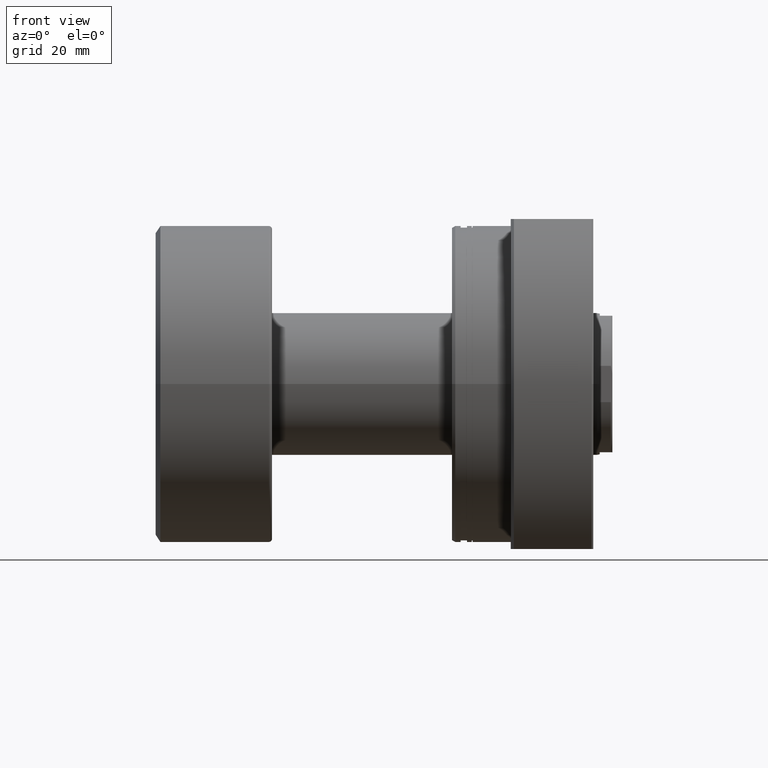
[diagram: clean part render]
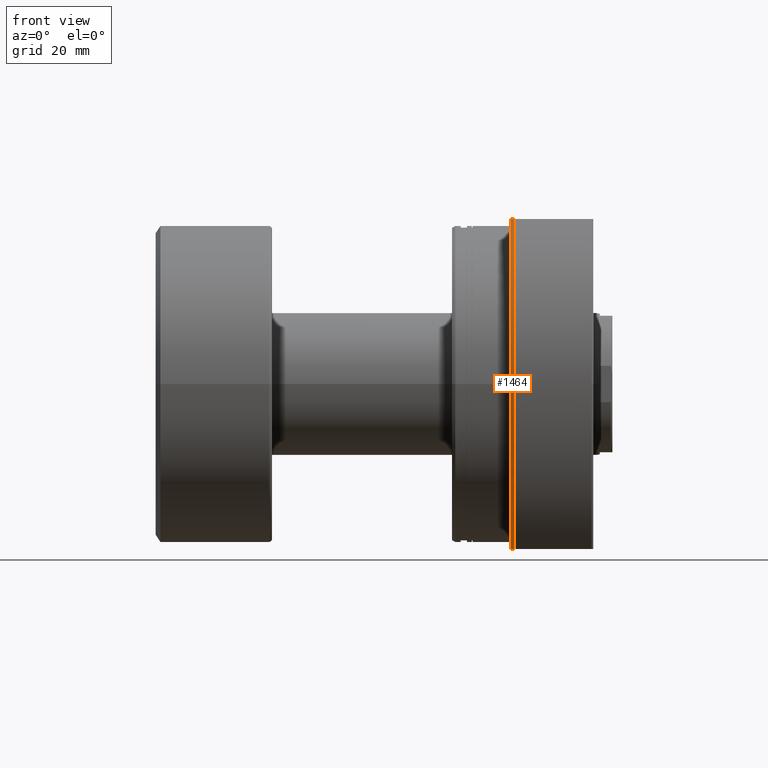
[diagram: same view with one face highlighted and labeled with its STEP entity id]
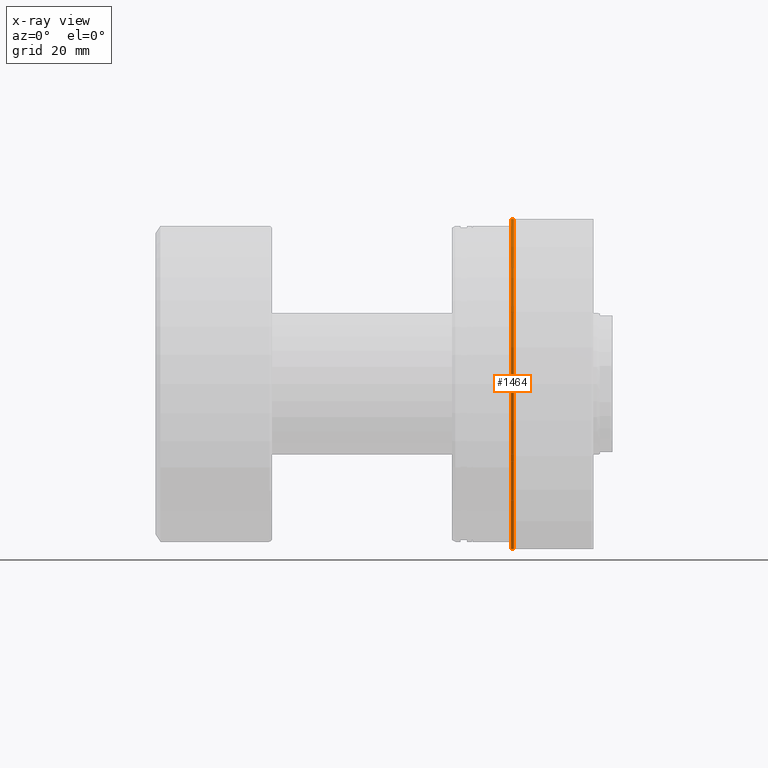
[diagram: x-ray of the same camera — body ghosted, the highlighted face saturated]
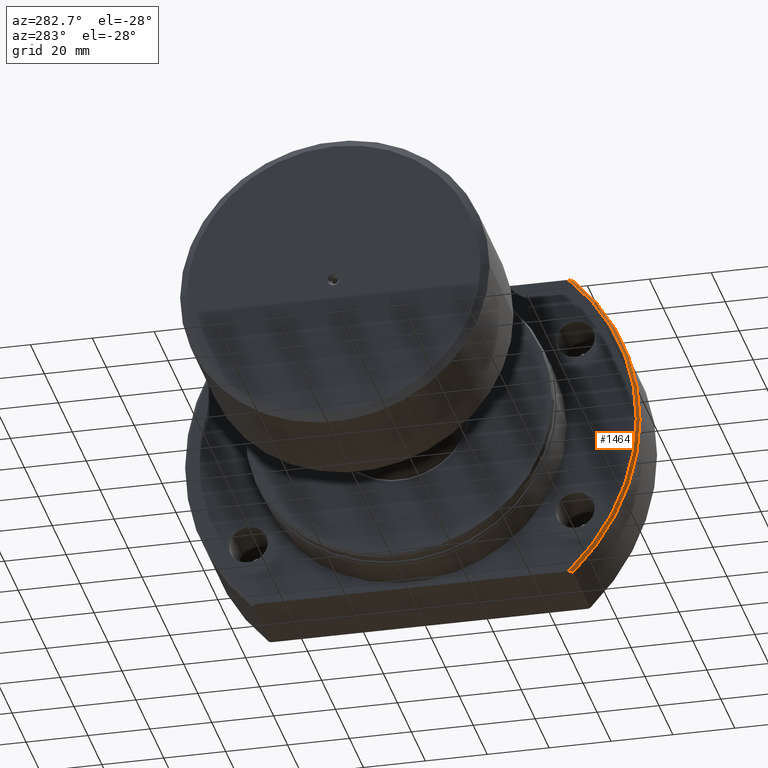
[diagram: same view with one face highlighted and labeled with its STEP entity id]
A machine part, front view. The second image highlights one B-rep face of the part: STEP entity #1464.
The next image is the same camera in x-ray: the body ghosted, the highlighted face saturated — about 0% of this face is hidden behind the body in this view.
A second angle (auxiliary view) of the same face is appended — the face is thin or edge-on in the first view.
In plain terms, the highlighted conical surface has half-angle 45 deg.
Its self-contained STEP definition (entity closure, byte-faithful):
#2 = CIRCLE ( 'NONE', #1892, 72.49999999999992895 ) ;
#79 = ORIENTED_EDGE ( 'NONE', *, *, #2573, .F. ) ;
#96 = DIRECTION ( 'NONE',  ( -4.785444071660162135E-17, 1.000000000000000000, 0.000000000000000000 ) ) ;
#130 = CARTESIAN_POINT ( 'NONE',  ( 18.50000000000000711, 1.018245653223641951E-15, 0.000000000000000000 ) ) ;
#227 = B_SPLINE_CURVE_WITH_KNOTS ( 'NONE', 3,
 ( #1865, #2126, #1849, #607 ),
 .UNSPECIFIED., .F., .F.,
 ( 4, 4 ),
 ( 0.1939618309439029020, 0.1957182682511685867 ),
 .UNSPECIFIED. ) ;
#277 = DIRECTION ( 'NONE',  ( -4.720335989052541552E-17, 1.000000000000000000, 0.000000000000000000 ) ) ;
#278 = CARTESIAN_POINT ( 'NONE',  ( 19.49999999999999289, -51.94468211472581487, 52.00000000000000000 ) ) ;
#290 = B_SPLINE_CURVE_WITH_KNOTS ( 'NONE', 3,
 ( #1639, #1222, #420, #1179 ),
 .UNSPECIFIED., .F., .F.,
 ( 4, 4 ),
 ( 0.1939618309439028465, 0.1957182682511685312 ),
 .UNSPECIFIED. ) ;
#420 = CARTESIAN_POINT ( 'NONE',  ( 19.16504727819932796, -51.47073513786417465, 52.00000000000000000 ) ) ;
#585 = ORIENTED_EDGE ( 'NONE', *, *, #667, .F. ) ;
#607 = CARTESIAN_POINT ( 'NONE',  ( 19.49999999999999289, -51.94468211472582198, -51.99999999999999289 ) ) ;
#667 = EDGE_CURVE ( 'NONE', #2685, #2253, #2000, .T. ) ;
#780 = EDGE_CURVE ( 'NONE', #2483, #1108, #2, .T. ) ;
#894 = DIRECTION ( 'NONE',  ( 1.000000000000000000, 5.504030557965630938E-17, -0.000000000000000000 ) ) ;
#1108 = VERTEX_POINT ( 'NONE', #2324 ) ;
#1110 = DIRECTION ( 'NONE',  ( 1.000000000000000000, 5.504030557965630938E-17, -0.000000000000000000 ) ) ;
#1111 = CARTESIAN_POINT ( 'NONE',  ( 18.50000000000000711, -50.51979809935892263, 52.00000000000000000 ) ) ;
#1179 = CARTESIAN_POINT ( 'NONE',  ( 19.49999999999999289, -51.94468211472581487, 52.00000000000000000 ) ) ;
#1222 = CARTESIAN_POINT ( 'NONE',  ( 18.83168451724293746, -50.99579223244746373, 52.00000000000000000 ) ) ;
#1292 = ORIENTED_EDGE ( 'NONE', *, *, #780, .T. ) ;
#1335 = DIRECTION ( 'NONE',  ( 1.000000000000000000, 5.504030557965630938E-17, -0.000000000000000000 ) ) ;
#1464 = ADVANCED_FACE ( 'NONE', ( #2351 ), #2278, .T. ) ;
#1525 = EDGE_CURVE ( 'NONE', #1108, #2253, #227, .T. ) ;
#1579 = AXIS2_PLACEMENT_3D ( 'NONE', #2812, #1110, #277 ) ;
#1591 = EDGE_LOOP ( 'NONE', ( #79, #1292, #2413, #585 ) ) ;
#1636 = AXIS2_PLACEMENT_3D ( 'NONE', #130, #894, #96 ) ;
#1639 = CARTESIAN_POINT ( 'NONE',  ( 18.50000000000000711, -50.51979809935892263, 52.00000000000000000 ) ) ;
#1849 = CARTESIAN_POINT ( 'NONE',  ( 19.16504727819932796, -51.47073513786417465, -52.00000000000000000 ) ) ;
#1865 = CARTESIAN_POINT ( 'NONE',  ( 18.50000000000000711, -50.51979809935892263, -52.00000000000000000 ) ) ;
#1892 = AXIS2_PLACEMENT_3D ( 'NONE', #2577, #1335, #2348 ) ;
#2000 = CIRCLE ( 'NONE', #1579, 73.49999999999991473 ) ;
#2126 = CARTESIAN_POINT ( 'NONE',  ( 18.83168451724294101, -50.99579223244747794, -52.00000000000000000 ) ) ;
#2253 = VERTEX_POINT ( 'NONE', #2932 ) ;
#2278 = CONICAL_SURFACE ( 'NONE', #1636, 72.49999999999992895, 0.7853981633974466137 ) ;
#2324 = CARTESIAN_POINT ( 'NONE',  ( 18.50000000000000711, -50.51979809935892263, -52.00000000000000000 ) ) ;
#2348 = DIRECTION ( 'NONE',  ( -4.785444071660162135E-17, 1.000000000000000000, 0.000000000000000000 ) ) ;
#2351 = FACE_OUTER_BOUND ( 'NONE', #1591, .T. ) ;
#2413 = ORIENTED_EDGE ( 'NONE', *, *, #1525, .T. ) ;
#2483 = VERTEX_POINT ( 'NONE', #1111 ) ;
#2573 = EDGE_CURVE ( 'NONE', #2483, #2685, #290, .T. ) ;
#2577 = CARTESIAN_POINT ( 'NONE',  ( 18.50000000000000711, 1.018245653223641951E-15, 0.000000000000000000 ) ) ;
#2685 = VERTEX_POINT ( 'NONE', #278 ) ;
#2812 = CARTESIAN_POINT ( 'NONE',  ( 19.49999999999999645, 1.073285958803297879E-15, 0.000000000000000000 ) ) ;
#2932 = CARTESIAN_POINT ( 'NONE',  ( 19.49999999999999289, -51.94468211472582198, -51.99999999999999289 ) ) ;